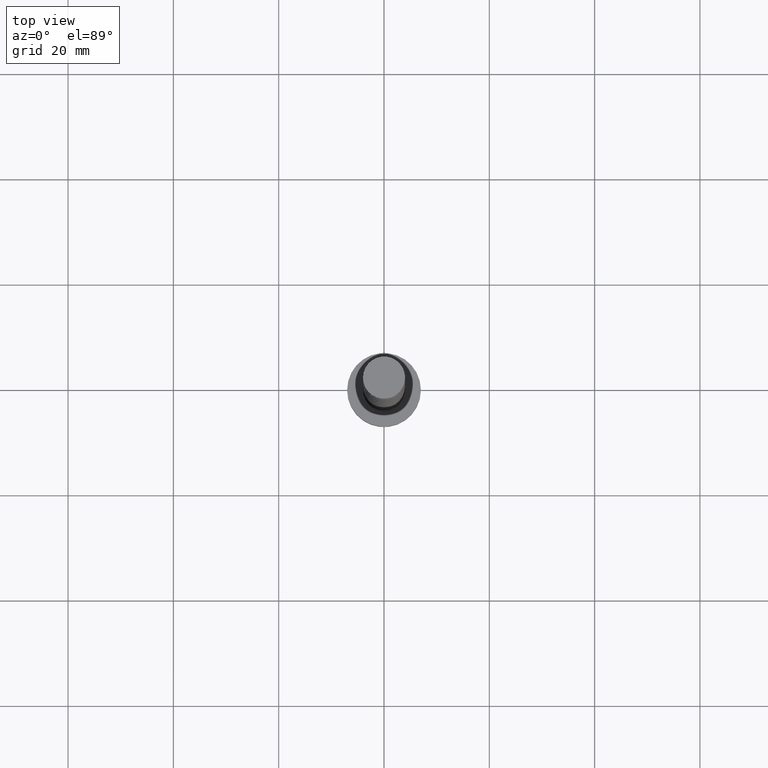
[diagram: clean part render]
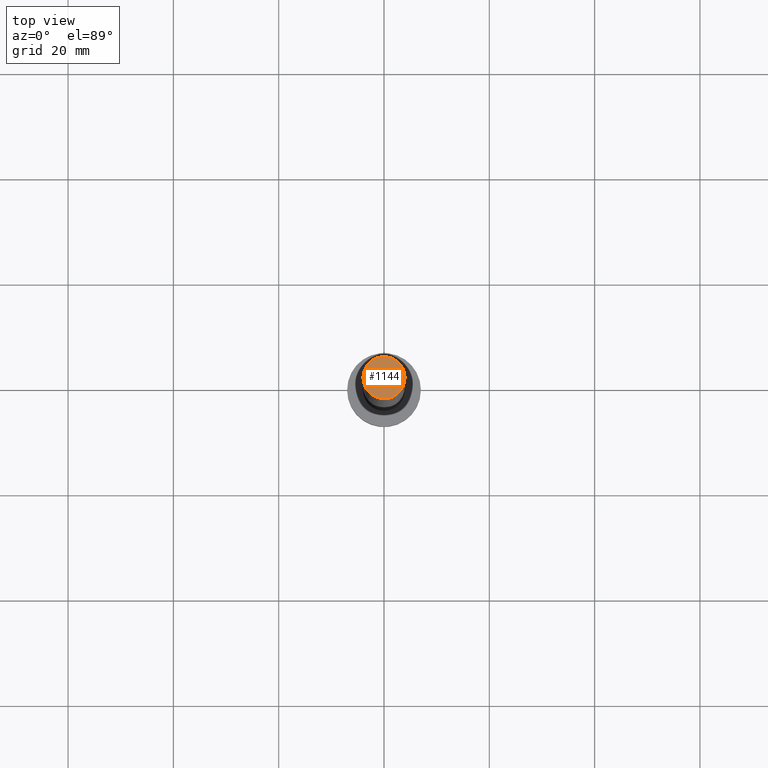
[diagram: same view with one face highlighted and labeled with its STEP entity id]
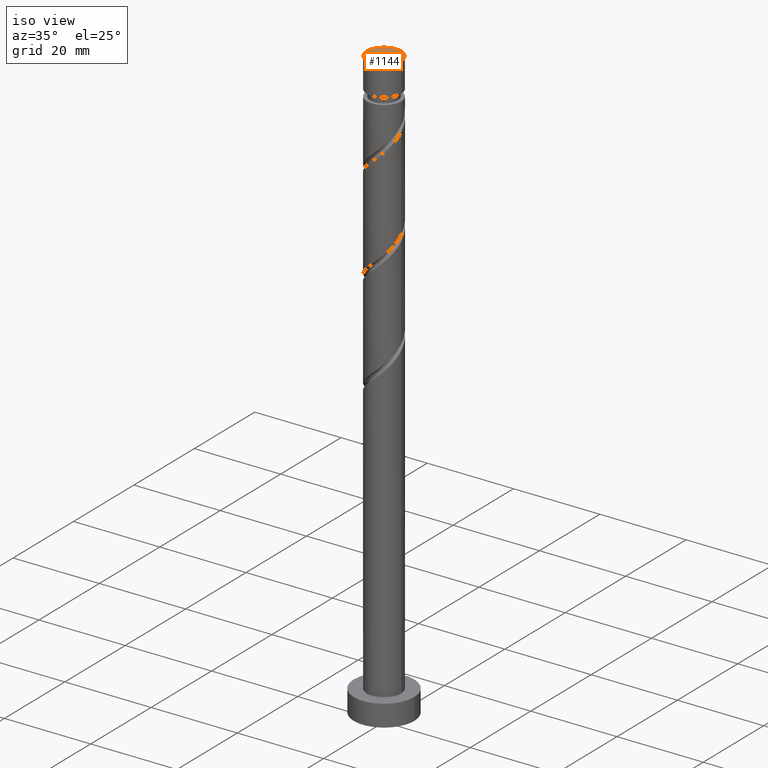
[diagram: same view with one face highlighted and labeled with its STEP entity id]
A machine part, top view. The second image highlights one B-rep face of the part: STEP entity #1144.
A second angle (iso view) of the same face is appended — the face is thin or edge-on in the first view.
In plain terms, the highlighted planar face has unit normal (0, 0, 1).
Its self-contained STEP definition (entity closure, byte-faithful):
#62 = ORIENTED_EDGE ( 'NONE', *, *, #934, .T. ) ;
#138 = PLANE ( 'NONE',  #811 ) ;
#247 = EDGE_LOOP ( 'NONE', ( #1014, #62 ) ) ;
#254 = FACE_OUTER_BOUND ( 'NONE', #247, .T. ) ;
#509 = AXIS2_PLACEMENT_3D ( 'NONE', #938, #1423, #966 ) ;
#612 = CARTESIAN_POINT ( 'NONE',  ( 0.000000000000000000, 0.000000000000000000, 137.4900000000000091 ) ) ;
#629 = DIRECTION ( 'NONE',  ( 0.000000000000000000, 0.000000000000000000, 1.000000000000000000 ) ) ;
#632 = CIRCLE ( 'NONE', #841, 4.000000000000000000 ) ;
#649 = EDGE_CURVE ( 'NONE', #1064, #992, #632, .T. ) ;
#803 = DIRECTION ( 'NONE',  ( 0.000000000000000000, 0.000000000000000000, 1.000000000000000000 ) ) ;
#811 = AXIS2_PLACEMENT_3D ( 'NONE', #612, #629, #1021 ) ;
#841 = AXIS2_PLACEMENT_3D ( 'NONE', #924, #803, #1054 ) ;
#919 = CARTESIAN_POINT ( 'NONE',  ( 4.000000000000000000, 4.898587196589412829E-16, 137.4900000000000091 ) ) ;
#924 = CARTESIAN_POINT ( 'NONE',  ( 0.000000000000000000, 0.000000000000000000, 137.4900000000000091 ) ) ;
#934 = EDGE_CURVE ( 'NONE', #992, #1064, #1217, .T. ) ;
#938 = CARTESIAN_POINT ( 'NONE',  ( 0.000000000000000000, 0.000000000000000000, 137.4900000000000091 ) ) ;
#966 = DIRECTION ( 'NONE',  ( 1.000000000000000000, 0.000000000000000000, 0.000000000000000000 ) ) ;
#992 = VERTEX_POINT ( 'NONE', #919 ) ;
#1014 = ORIENTED_EDGE ( 'NONE', *, *, #649, .T. ) ;
#1021 = DIRECTION ( 'NONE',  ( 1.000000000000000000, 0.000000000000000000, -0.000000000000000000 ) ) ;
#1054 = DIRECTION ( 'NONE',  ( 1.000000000000000000, 0.000000000000000000, 0.000000000000000000 ) ) ;
#1064 = VERTEX_POINT ( 'NONE', #1486 ) ;
#1144 = ADVANCED_FACE ( 'NONE', ( #254 ), #138, .T. ) ;
#1217 = CIRCLE ( 'NONE', #509, 4.000000000000000000 ) ;
#1423 = DIRECTION ( 'NONE',  ( 0.000000000000000000, 0.000000000000000000, 1.000000000000000000 ) ) ;
#1486 = CARTESIAN_POINT ( 'NONE',  ( -4.000000000000000000, 0.000000000000000000, 137.4900000000000091 ) ) ;